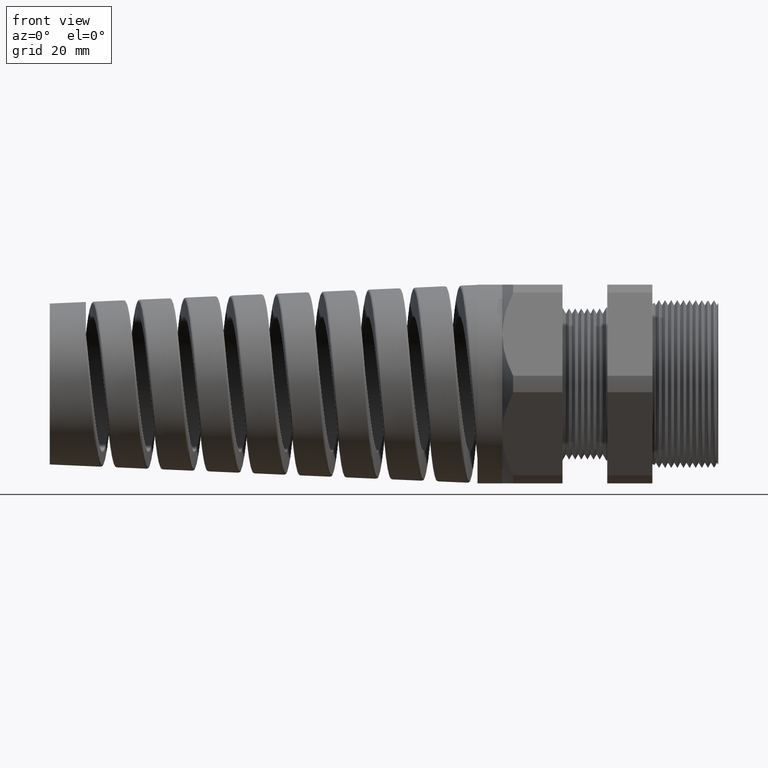
[diagram: clean part render]
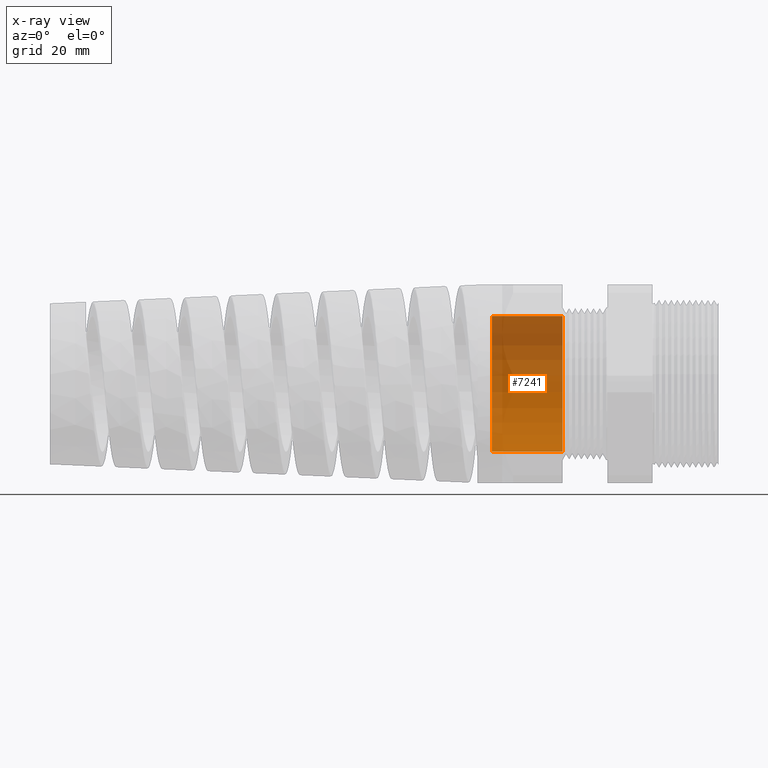
[diagram: x-ray — body ghosted, one internal face saturated and labeled with its STEP entity id]
A machine part, front view, then the same camera in x-ray: the body is ghosted and one INTERNAL B-rep face — a face not visible from any outside direction — is saturated and labeled: STEP entity #7241.
In plain terms, the highlighted cylindrical surface (partial cylindrical patch) has radius 11.2776 mm, axis along (1, 0, 0).
Its self-contained STEP definition (entity closure, byte-faithful):
#5435 = CARTESIAN_POINT ( 'NONE',  ( -1.359999999999999900, 5.437431788214247900E-017, 0.4439999999999999500 ) ) ;
#5465 = DIRECTION ( 'NONE',  ( 1.000000000000000000, 0.0000000000000000000, 0.0000000000000000000 ) ) ;
#5466 = AXIS2_PLACEMENT_3D ( 'NONE', #5473, #5465, #6567 ) ;
#5467 = CIRCLE ( 'NONE', #5466, 0.4439999999999999500 ) ;
#5473 = CARTESIAN_POINT ( 'NONE',  ( -1.359999999999999900, 0.0000000000000000000, 0.0000000000000000000 ) ) ;
#5761 = CARTESIAN_POINT ( 'NONE',  ( -1.359999999999999900, 0.0000000000000000000, -0.4439999999999999500 ) ) ;
#5766 = CARTESIAN_POINT ( 'NONE',  ( -0.8981889763779525900, 5.437431788214247900E-017, 0.4439999999999999500 ) ) ;
#6288 = VERTEX_POINT ( 'NONE', #5435 ) ;
#6292 = EDGE_LOOP ( 'NONE', ( #6473, #6480, #7102, #7092 ) ) ;
#6303 = EDGE_CURVE ( 'NONE', #6304, #6288, #5467, .T. ) ;
#6304 = VERTEX_POINT ( 'NONE', #5761 ) ;
#6473 = ORIENTED_EDGE ( 'NONE', *, *, #6303, .T. ) ;
#6479 = VERTEX_POINT ( 'NONE', #5766 ) ;
#6480 = ORIENTED_EDGE ( 'NONE', *, *, #7238, .T. ) ;
#6567 = DIRECTION ( 'NONE',  ( 0.0000000000000000000, 0.0000000000000000000, -1.000000000000000000 ) ) ;
#7091 = VERTEX_POINT ( 'NONE', #7829 ) ;
#7092 = ORIENTED_EDGE ( 'NONE', *, *, #7235, .F. ) ;
#7102 = ORIENTED_EDGE ( 'NONE', *, *, #7236, .F. ) ;
#7235 = EDGE_CURVE ( 'NONE', #6304, #7091, #7820, .T. ) ;
#7236 = EDGE_CURVE ( 'NONE', #7091, #6479, #7812, .T. ) ;
#7238 = EDGE_CURVE ( 'NONE', #6288, #6479, #7806, .T. ) ;
#7241 = ADVANCED_FACE ( 'NONE', ( #7801 ), #7800, .T. ) ;
#7795 = DIRECTION ( 'NONE',  ( 0.0000000000000000000, 0.0000000000000000000, -1.000000000000000000 ) ) ;
#7796 = DIRECTION ( 'NONE',  ( 1.000000000000000000, 0.0000000000000000000, 0.0000000000000000000 ) ) ;
#7797 = CARTESIAN_POINT ( 'NONE',  ( 0.0000000000000000000, 0.0000000000000000000, 0.0000000000000000000 ) ) ;
#7798 = AXIS2_PLACEMENT_3D ( 'NONE', #7797, #7796, #7795 ) ;
#7800 = CYLINDRICAL_SURFACE ( 'NONE', #7798, 0.4439999999999999500 ) ;
#7801 = FACE_OUTER_BOUND ( 'NONE', #6292, .T. ) ;
#7803 = DIRECTION ( 'NONE',  ( 1.000000000000000000, 0.0000000000000000000, 0.0000000000000000000 ) ) ;
#7804 = VECTOR ( 'NONE', #7803, 39.37007874015748100 ) ;
#7805 = CARTESIAN_POINT ( 'NONE',  ( 0.0000000000000000000, 5.437431788214247900E-017, 0.4439999999999999500 ) ) ;
#7806 = LINE ( 'NONE', #7805, #7804 ) ;
#7808 = DIRECTION ( 'NONE',  ( 0.0000000000000000000, 0.0000000000000000000, -1.000000000000000000 ) ) ;
#7809 = DIRECTION ( 'NONE',  ( 1.000000000000000000, 0.0000000000000000000, 0.0000000000000000000 ) ) ;
#7810 = CARTESIAN_POINT ( 'NONE',  ( -0.8981889763779525900, 0.0000000000000000000, 0.0000000000000000000 ) ) ;
#7811 = AXIS2_PLACEMENT_3D ( 'NONE', #7810, #7809, #7808 ) ;
#7812 = CIRCLE ( 'NONE', #7811, 0.4439999999999999500 ) ;
#7813 = DIRECTION ( 'NONE',  ( 1.000000000000000000, 0.0000000000000000000, 0.0000000000000000000 ) ) ;
#7814 = VECTOR ( 'NONE', #7813, 39.37007874015748100 ) ;
#7815 = CARTESIAN_POINT ( 'NONE',  ( 0.0000000000000000000, 0.0000000000000000000, -0.4439999999999999500 ) ) ;
#7820 = LINE ( 'NONE', #7815, #7814 ) ;
#7829 = CARTESIAN_POINT ( 'NONE',  ( -0.8981889763779525900, 0.0000000000000000000, -0.4439999999999999500 ) ) ;